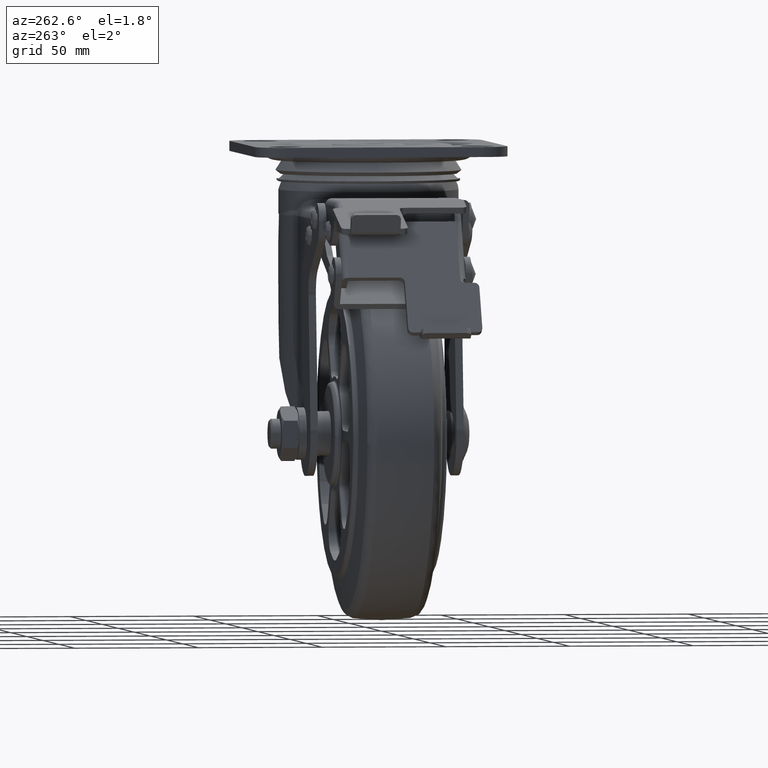
[diagram: clean part render]
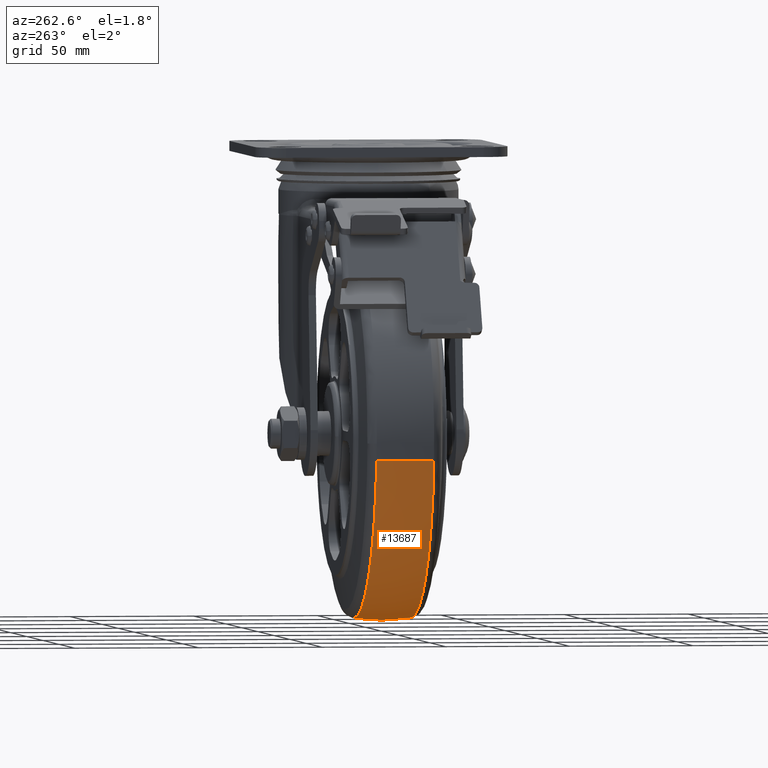
[diagram: same view with one face highlighted and labeled with its STEP entity id]
A machine part, auxiliary view. The second image highlights one B-rep face of the part: STEP entity #13687.
In plain terms, the highlighted face is a freeform B-spline surface patch.
Its self-contained STEP definition (entity closure, byte-faithful):
#12416=CARTESIAN_POINT('',(-73.661634925751287,-11.578909018834720,-8.562488077963099));
#12417=VERTEX_POINT('',#12416);
#12437=CARTESIAN_POINT('',(-5.696281E-014,-11.578882446838721,-74.157624277626596));
#12438=VERTEX_POINT('',#12437);
#12439=CARTESIAN_POINT('',(-5.696281E-014,-11.578882446838721,-74.157624277626596));
#12440=CARTESIAN_POINT('',(-2.950514940267505,-11.578883040440640,-74.157705447184753));
#12441=CARTESIAN_POINT('',(-8.992037794610665,-11.578884320638210,-73.796580946845822));
#12442=CARTESIAN_POINT('',(-18.545409312682921,-11.578886557431810,-72.039798699573595));
#12443=CARTESIAN_POINT('',(-27.644362847399091,-11.578888925217790,-69.041565056856541));
#12444=CARTESIAN_POINT('',(-36.899191855327892,-11.578891586155891,-64.582107965168632));
#12445=CARTESIAN_POINT('',(-45.253756931526759,-11.578894253215770,-59.077505488001762));
#12446=CARTESIAN_POINT('',(-52.826058148899243,-11.578896984820140,-52.334180685499753));
#12447=CARTESIAN_POINT('',(-59.011400325332197,-11.578899504596681,-45.215679031843557));
#12448=CARTESIAN_POINT('',(-64.283861888911289,-11.578901966523169,-37.394938756608497));
#12449=CARTESIAN_POINT('',(-68.304800974913817,-11.578904220664111,-29.328550246045712));
#12450=CARTESIAN_POINT('',(-71.759535186548149,-11.578906648468230,-19.657005531155729));
#12451=CARTESIAN_POINT('',(-73.159103435862932,-11.578908142604730,-12.888955866059749));
#12452=CARTESIAN_POINT('',(-73.661634925751287,-11.578909018834720,-8.562488077963099));
#12453=B_SPLINE_CURVE_WITH_KNOTS('',3,(#12439,#12440,#12441,#12442,#12443,#12444,#12445,#12446,#12447,#12448,#12449,#12450,#12451,#12452),.UNSPECIFIED.,.F.,.U.,(4,1,1,1,1,1,1,1,1,1,1,4),(0.000000060409064,8.851547956179573,18.124655393627108,29.083785762880169,37.513886320448812,48.894478519447560,59.010564477999431,67.862118509380693,77.135232739618687,87.251354156674196,94.838448758438460,107.905035259535200),.UNSPECIFIED.);
#12454=EDGE_CURVE('',#12438,#12417,#12453,.T.);
#12544=CARTESIAN_POINT('',(-5.696281E-014,11.578892341684369,-74.157622809211517));
#12545=VERTEX_POINT('',#12544);
#12565=CARTESIAN_POINT('',(-73.661633471116247,11.578918898959341,-8.562487892946319));
#12566=VERTEX_POINT('',#12565);
#12567=CARTESIAN_POINT('',(-5.696281E-014,11.578892341684369,-74.157622809211517));
#12568=CARTESIAN_POINT('',(-5.198607706886979,11.578893386859059,-74.158504970850629));
#12569=CARTESIAN_POINT('',(-13.909301254704090,11.578895303288180,-73.237646727474583));
#12570=CARTESIAN_POINT('',(-25.952583851670930,11.578898348217930,-69.756827185711487));
#12571=CARTESIAN_POINT('',(-36.075587730851481,11.578901213121849,-65.124979700077589));
#12572=CARTESIAN_POINT('',(-45.959818069410929,11.578904366783620,-58.612361912763667));
#12573=CARTESIAN_POINT('',(-54.048128108800668,11.578907327815060,-51.158758705463853));
#12574=CARTESIAN_POINT('',(-59.809554538937647,11.578909758875550,-44.051874142492920));
#12575=CARTESIAN_POINT('',(-64.523197785323873,11.578911989850530,-36.885776723216942));
#12576=CARTESIAN_POINT('',(-68.782490162347415,11.578914354654080,-28.462059461744541));
#12577=CARTESIAN_POINT('',(-72.081784083665937,11.578916815920850,-18.421568088403781));
#12578=CARTESIAN_POINT('',(-73.304799845068217,11.578918277432249,-11.632834736388400));
#12579=CARTESIAN_POINT('',(-73.661633471116247,11.578918898959341,-8.562487892946319));
#12580=B_SPLINE_CURVE_WITH_KNOTS('',3,(#12567,#12568,#12569,#12570,#12571,#12572,#12573,#12574,#12575,#12576,#12577,#12578,#12579),.UNSPECIFIED.,.F.,.U.,(4,1,1,1,1,1,1,1,1,1,4),(0.000000060271887,15.595619658345660,26.133248345002489,37.513885710697267,48.894477724756662,61.539581940321639,70.391154716569289,76.292216563789424,87.251352738660287,98.631986261835692,107.905033505886190),.UNSPECIFIED.);
#12581=EDGE_CURVE('',#12545,#12566,#12580,.T.);
#13625=CARTESIAN_POINT('',(-5.696281E-014,11.578892341684369,-74.157622809211517));
#13626=CARTESIAN_POINT('',(-5.688084E-014,7.626706220534407,-74.735993967753245));
#13627=CARTESIAN_POINT('',(-5.680351E-014,-0.122309711411038,-75.281551233030783));
#13628=CARTESIAN_POINT('',(-5.688581E-014,-7.866209475800664,-74.700893050782483));
#13629=CARTESIAN_POINT('',(-5.696281E-014,-11.578882446838721,-74.157624277626596));
#13630=B_SPLINE_CURVE_WITH_KNOTS('',3,(#13625,#13626,#13627,#13628,#13629),.UNSPECIFIED.,.F.,.U.,(4,1,4),(3.028592E-009,11.982813138318569,23.239420156656919),.UNSPECIFIED.);
#13631=EDGE_CURVE('',#12545,#12438,#13630,.T.);
#13637=CARTESIAN_POINT('',(-73.661633471116247,11.578918898959341,-8.562487892946319));
#13638=CARTESIAN_POINT('',(-74.270973883514401,7.387192127014758,-8.633318658671715));
#13639=CARTESIAN_POINT('',(-74.778072884475719,-0.366941087252437,-8.692264711803299));
#13640=CARTESIAN_POINT('',(-74.166408574962915,-8.105757599289325,-8.621163820542064));
#13641=CARTESIAN_POINT('',(-73.661634925751287,-11.578909018834720,-8.562488077963099));
#13642=B_SPLINE_CURVE_WITH_KNOTS('',3,(#13637,#13638,#13639,#13640,#13641),.UNSPECIFIED.,.F.,.U.,(4,1,4),(3.029644E-009,12.709084287850590,23.239473849457561),.UNSPECIFIED.);
#13643=EDGE_CURVE('',#12566,#12417,#13642,.T.);
#13648=CARTESIAN_POINT('',(0.479950362489890,12.757851683586924,-73.976181348680001));
#13649=CARTESIAN_POINT('',(0.486592799607709,6.420006607457917,-74.999999999999943));
#13650=CARTESIAN_POINT('',(0.486592799607708,0.0,-74.999999999999915));
#13651=CARTESIAN_POINT('',(0.486592799607709,-6.419999656495630,-74.999999999999929));
#13652=CARTESIAN_POINT('',(0.479950376781421,-12.757838047393310,-73.976183551476282));
#13653=CARTESIAN_POINT('',(0.240298067093486,12.757851683586919,-73.976181348680001));
#13654=CARTESIAN_POINT('',(0.243623754341479,6.420006607457916,-74.999999999999957));
#13655=CARTESIAN_POINT('',(0.243623754341479,0.0,-74.999999999999915));
#13656=CARTESIAN_POINT('',(0.243623754341479,-6.419999656495629,-74.999999999999929));
#13657=CARTESIAN_POINT('',(0.240298074248866,-12.757838047393308,-73.976183551476296));
#13658=CARTESIAN_POINT('',(-65.875175549868530,12.757851683586921,-73.976181348680001));
#13659=CARTESIAN_POINT('',(-66.786877562020791,6.420006607457915,-74.999999999999957));
#13660=CARTESIAN_POINT('',(-66.786877562020791,0.0,-74.999999999999943));
#13661=CARTESIAN_POINT('',(-66.786877562020791,-6.419999656495631,-74.999999999999957));
#13662=CARTESIAN_POINT('',(-65.875177511440370,-12.757838047393308,-73.976183551476296));
#13663=CARTESIAN_POINT('',(-73.510406378905131,12.757851683586921,-8.292084278156066));
#13664=CARTESIAN_POINT('',(-74.527778778300771,6.420006607457915,-8.406845413260868));
#13665=CARTESIAN_POINT('',(-74.527778778300757,0.0,-8.406845413260868));
#13666=CARTESIAN_POINT('',(-74.527778778300771,-6.419999656495630,-8.406845413260866));
#13667=CARTESIAN_POINT('',(-73.510408567832016,-12.757838047393301,-8.292084525070305));
#13668=CARTESIAN_POINT('',(-73.539342375410769,12.757851683586923,-8.043154698178000));
#13669=CARTESIAN_POINT('',(-74.557115244422107,6.420006607457916,-8.154470687261469));
#13670=CARTESIAN_POINT('',(-74.557115244422107,0.0,-8.154470687261469));
#13671=CARTESIAN_POINT('',(-74.557115244422107,-6.419999656495629,-8.154470687261469));
#13672=CARTESIAN_POINT('',(-73.539344565199272,-12.757838047393303,-8.043154937679837));
#13680=(BOUNDED_SURFACE()B_SPLINE_SURFACE(2,2,((#13648,#13653,#13658,#13663,#13668),(#13649,#13654,#13659,#13664,#13669),(#13650,#13655,#13660,#13665,#13670),(#13651,#13656,#13661,#13666,#13671),(#13652,#13657,#13662,#13667,#13672)),.UNSPECIFIED.,.F.,.F.,.U.)B_SPLINE_SURFACE_WITH_KNOTS((3,2,3),(3,1,1,3),(0.0,13.163296351738399,26.326578890508330),(0.0,0.570988088145717,114.768534813912300,115.339596357950500),.UNSPECIFIED.)GEOMETRIC_REPRESENTATION_ITEM()RATIONAL_B_SPLINE_SURFACE(((0.947943354435318,0.946669613459807,0.690647835551009,0.905706266639259,0.906776346703548),(0.971810471705568,0.970504660749196,0.708036820669597,0.928509947446913,0.929606969760718),(1.002694619286128,1.001347309643064,0.730538238691624,0.958018003885778,0.959149889580896),(0.971810504113997,0.970504693114078,0.708036844281568,0.928509978411334,0.929607000761724),(0.947943404525475,0.946669663482658,0.690647872045445,0.905706314497571,0.906776394618404)))REPRESENTATION_ITEM('')SURFACE());
#13681=ORIENTED_EDGE('',*,*,#12454,.T.);
#13682=ORIENTED_EDGE('',*,*,#13643,.F.);
#13683=ORIENTED_EDGE('',*,*,#12581,.F.);
#13684=ORIENTED_EDGE('',*,*,#13631,.T.);
#13685=EDGE_LOOP('',(#13681,#13682,#13683,#13684));
#13686=FACE_OUTER_BOUND('',#13685,.T.);
#13687=ADVANCED_FACE('',(#13686),#13680,.T.);